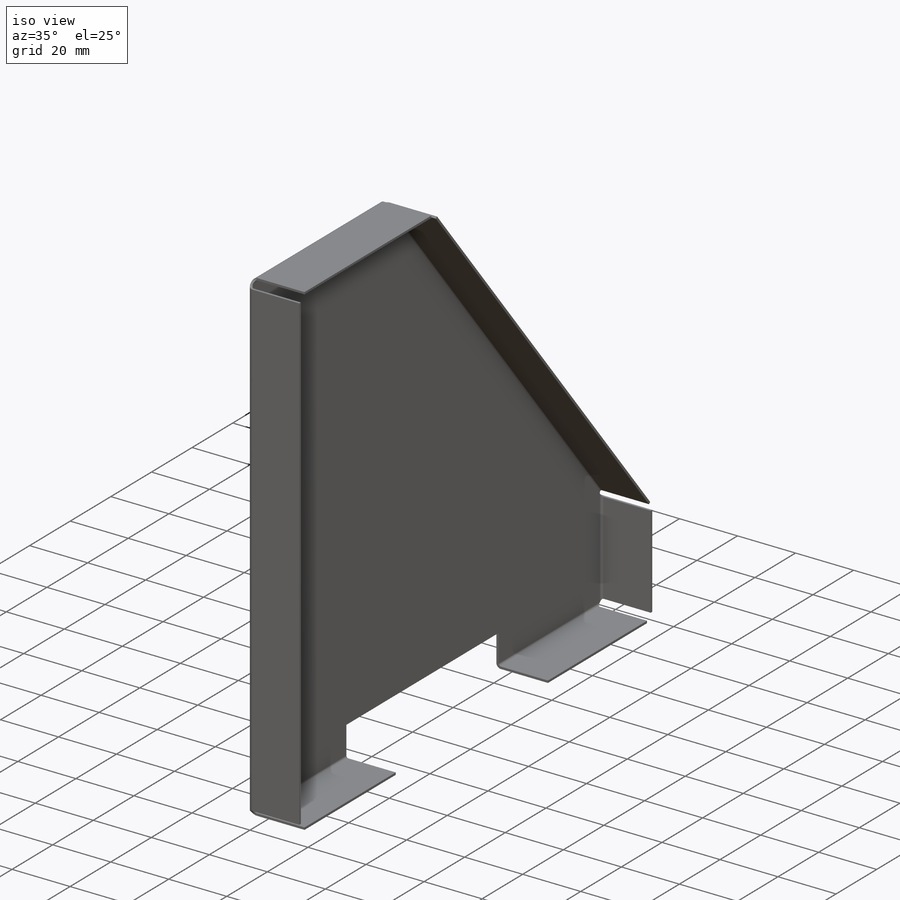
[diagram: iso view]
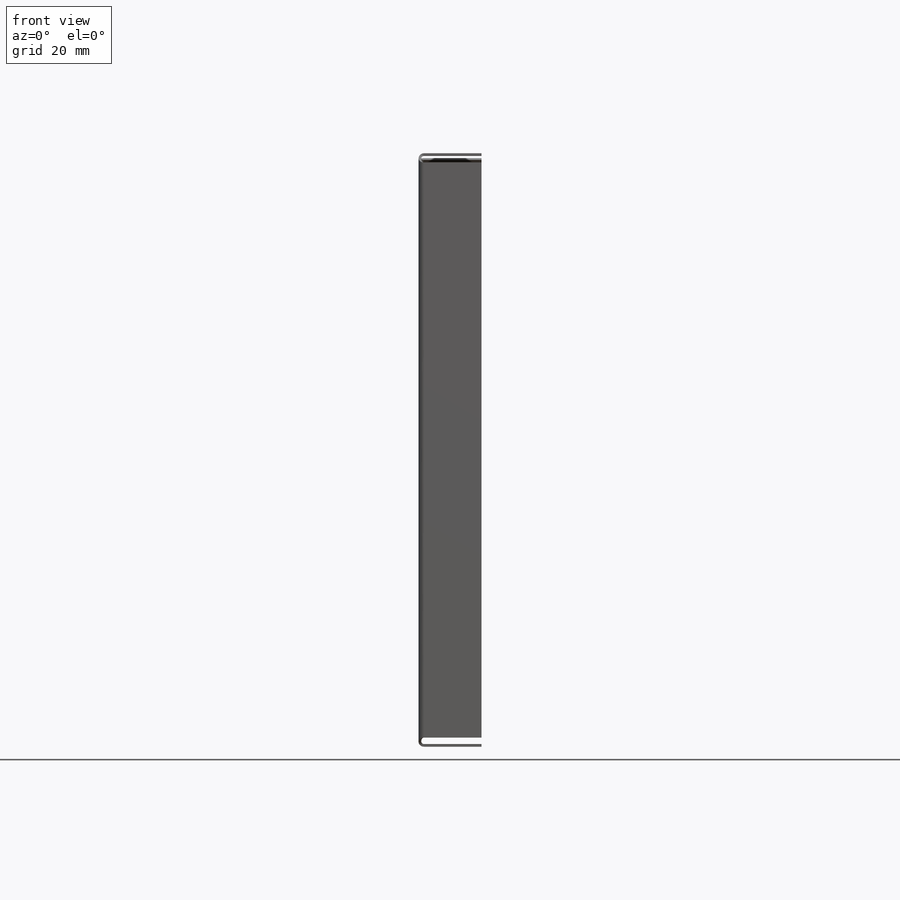
[diagram: front view]
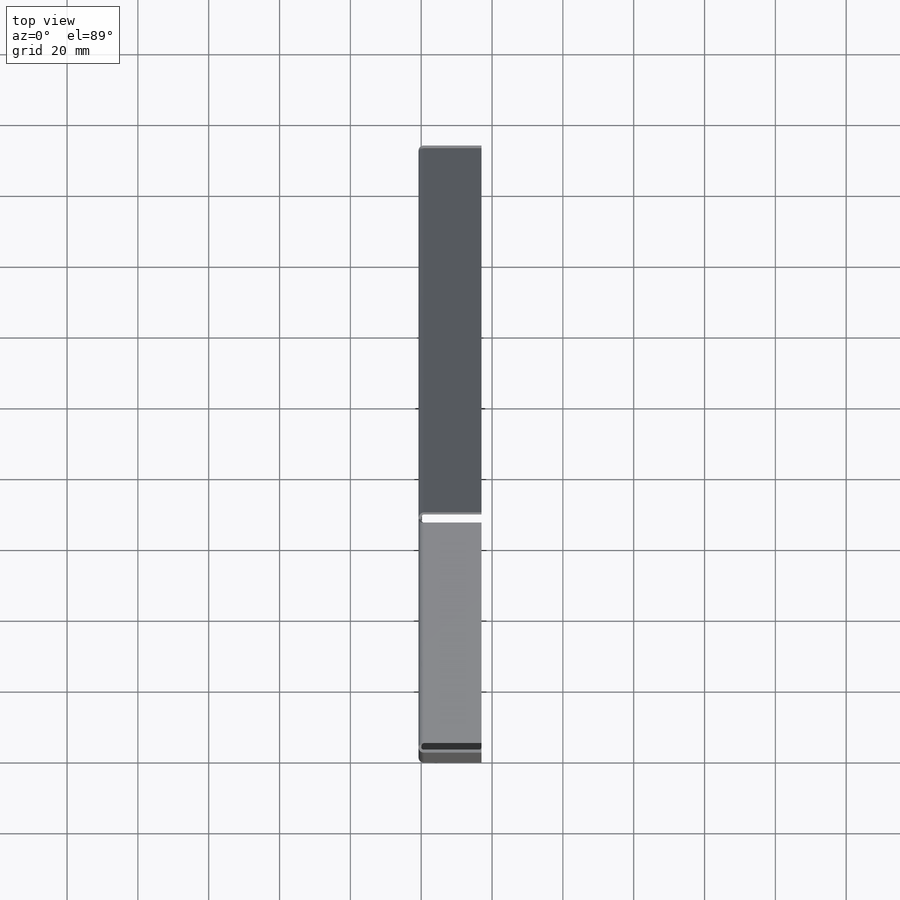
[diagram: top view]
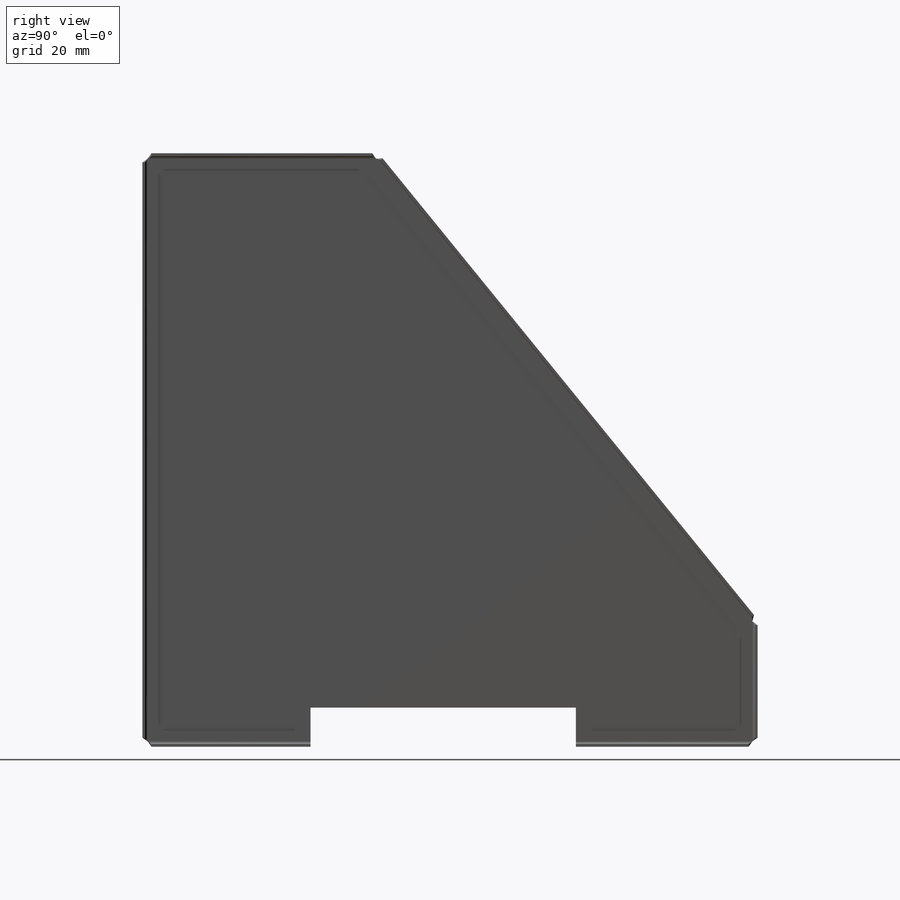
[diagram: right view]
SOLIDWORKS PART (.sldprt)
format: sldprt  version: not decoded by parser v0  size: 1,287,680 bytes
history: native  units: mm
features: sheet_metal_op x11, sketch x8, cut_extrude x2, material x1 + 11 further entries (+11 scaffold rows collapsed; 1 parser-record rows omitted)
feature tree (45):
  scaffold x11  (default folders/planes/origin — collapsed)
  material  "6061-T6 (SS)"
  sketch  "Sketch1"  dims[c1.D1=~167.54475mm c1.D2=173.736mm c1.D3=~66.689478mm c1.D4=35.9283mm c1.D5=~66.144648mm c2.D5=~126.342783deg c2.D6=~101.393752mm c3.D6=~143.657217deg c3.D5=~131.61645mm]
  sheet_metal_op  "Sheet-Metal1"
  sheet_metal_op  "Base-Flange1"
  sketch  "Sketch29"  dims[c1.D1=0.7366mm c1.D4=90.0deg c1.D5=1.0 c1.D8=0.381mm c1.D9=0.381mm c2.D1=0.7366mm c2.D2=500.0mm c2.D3=0.0mm c2.D6=10.0mm c2.D7=17.78mm]
  sketch  "Sketch33"  dims[c1.D1=17.78mm c2.D1=17.78mm c3.D1=0.7366mm c3.D4=90.0deg c3.D5=0.0mm c3.D8=0.381mm c3.D9=0.381mm]
  sheet_metal_op  "Miterbend13"
  sheet_metal_op  "Miterbend14"
  sheet_metal_op  "Miterbend15"
  sheet_metal_op  "Miterbend16"
  sketch  "Sketch34"  dims[D1=17.78mm Miter Flange4=0.0]
  sheet_metal_op  "Miterbend17"
  sheet_metal_op  "Miterbend18"
  sheet_metal_op  "Miterbend19"
  sheet_metal_op  "Miterbend20"
  sheet_metal_op  "Miterbend21"
  sketch  "Sketch35"  dims[D1=45.974mm D2=74.93mm D3=~19.251987mm D4=9.525mm]
  cut_extrude  "Cut-Extrude1"  Depth=51.562mm
  sketch  "Sketch36"  dims[c1.D1=74.93mm c1.D2=45.974mm c1.D3=9.525mm c1.D4=~22.305207mm c2.D2=45.974mm]
  cut_extrude  "Cut-Extrude2"  Depth=51.562mm
  "Flat-Pattern1"
  sketch  "Bend-Lines1"
  sketch  "Bounding-Box1"
  parser-record x1  (decoder bookkeeping rows leaked as tree rows — omitted from the tree; the rows remain in map.json)
  "Flatten-<Miterbend12>1"
  "Flatten-<Miterbend13>1"
  "Flatten-<Miterbend14>1"
  "Flatten-<Miterbend15>1"
  "Flatten-<Miterbend16>1"
  "Flatten-<Miterbend17>1"
  "Flatten-<Miterbend18>1"
  "Flatten-<Miterbend19>1"
  "Flatten-<Miterbend20>1"
  "Flatten-<Miterbend21>1"
decode coverage: 8 of 21 modeling features carry decoded parameters; 11 rows unclassified (native names shown)
note: ~ marks probable driven/reference dimensions
note: suppression state not decoded; provenance and decode notes live in map.json
